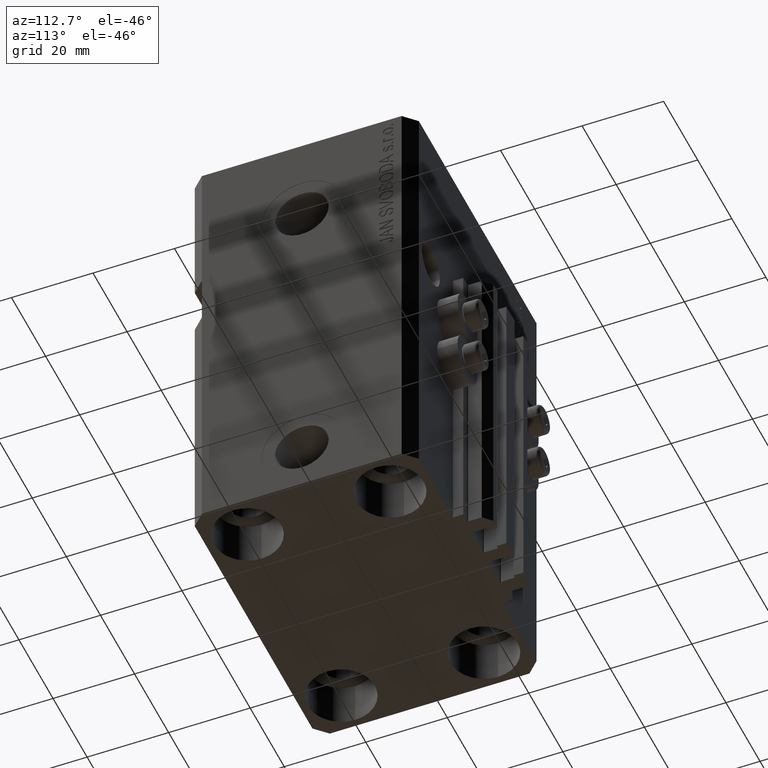
[diagram: clean part render]
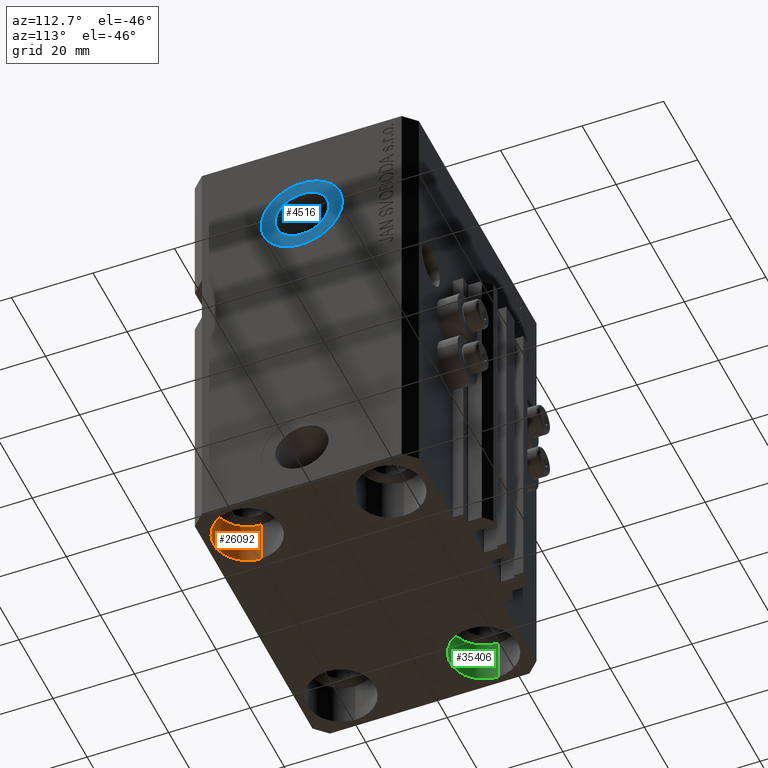
[diagram: same view with three faces highlighted in distinct colors, each labeled with its STEP entity id]
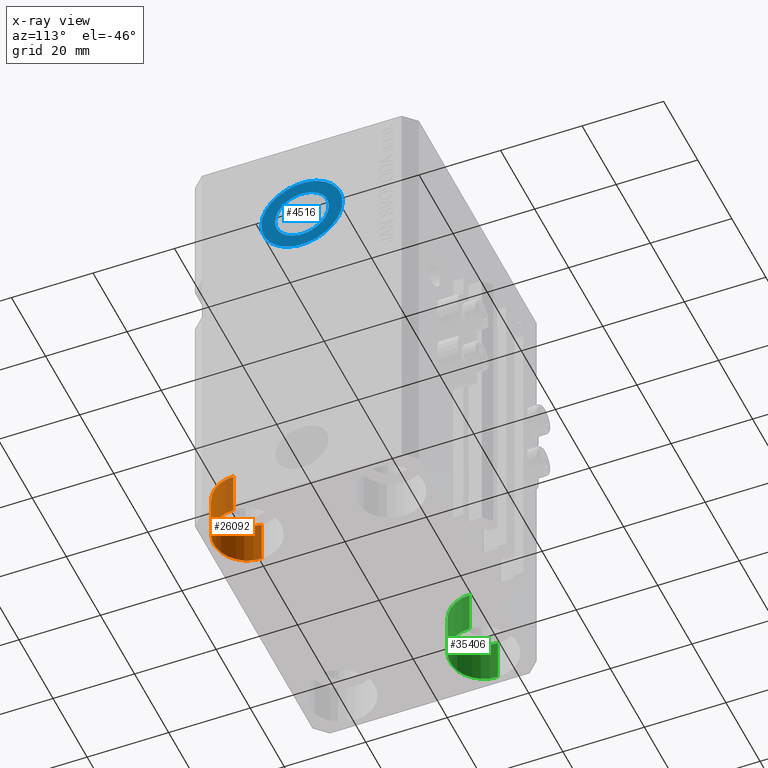
[diagram: x-ray of the same camera — body ghosted, the three highlighted faces saturated]
A machine part, auxiliary view with three faces highlighted in distinct colors.
The next image is the same camera in x-ray (body ghosted, the three faces saturated) — at least one of them is partly hidden behind the body in this view.
Their STEP definitions:

[orange] entity #26092 — the highlighted cylindrical surface (edge-blend (fillet) strip) has radius 8.25 mm, axis along (-0, -0, -1).
#1530 = EDGE_CURVE ( 'NONE', #41161, #18474, #46039, .T. ) ;
#4219 = CARTESIAN_POINT ( 'NONE',  ( 27.50000000000000355, -17.50000000000000000, -110.0000000000000000 ) ) ;
#4672 = DIRECTION ( 'NONE',  ( 1.000000000000000000, 0.000000000000000000, 0.000000000000000000 ) ) ;
#5821 = DIRECTION ( 'NONE',  ( -0.000000000000000000, -0.000000000000000000, -1.000000000000000000 ) ) ;
#11143 = AXIS2_PLACEMENT_3D ( 'NONE', #44442, #15793, #4672 ) ;
#13281 = DIRECTION ( 'NONE',  ( -1.000000000000000000, 0.000000000000000000, 0.000000000000000000 ) ) ;
#13619 = CARTESIAN_POINT ( 'NONE',  ( 19.25000000000000000, -17.50000000000000000, -99.00000000000000000 ) ) ;
#14401 = EDGE_CURVE ( 'NONE', #43919, #26693, #46798, .T. ) ;
#15793 = DIRECTION ( 'NONE',  ( -0.000000000000000000, -0.000000000000000000, 1.000000000000000000 ) ) ;
#17056 = CYLINDRICAL_SURFACE ( 'NONE', #39009, 8.250000000000003553 ) ;
#18474 = VERTEX_POINT ( 'NONE', #42872 ) ;
#18659 = DIRECTION ( 'NONE',  ( 1.000000000000000000, 0.000000000000000000, 0.000000000000000000 ) ) ;
#19797 = EDGE_CURVE ( 'NONE', #18474, #26693, #43330, .T. ) ;
#20374 = ORIENTED_EDGE ( 'NONE', *, *, #44709, .T. ) ;
#22430 = DIRECTION ( 'NONE',  ( -0.000000000000000000, -0.000000000000000000, 1.000000000000000000 ) ) ;
#22876 = CARTESIAN_POINT ( 'NONE',  ( 35.75000000000000711, -17.50000000000000000, -99.00000000000000000 ) ) ;
#23017 = ORIENTED_EDGE ( 'NONE', *, *, #19797, .F. ) ;
#23917 = DIRECTION ( 'NONE',  ( -0.000000000000000000, -0.000000000000000000, -1.000000000000000000 ) ) ;
#24263 = VECTOR ( 'NONE', #24316, 1000.000000000000000 ) ;
#24316 = DIRECTION ( 'NONE',  ( -0.000000000000000000, -0.000000000000000000, -1.000000000000000000 ) ) ;
#24703 = ORIENTED_EDGE ( 'NONE', *, *, #1530, .F. ) ;
#26092 = ADVANCED_FACE ( 'NONE', ( #34817 ), #17056, .F. ) ;
#26598 = CARTESIAN_POINT ( 'NONE',  ( 19.25000000000000000, -17.50000000000000000, -99.00000000000000000 ) ) ;
#26693 = VERTEX_POINT ( 'NONE', #40765 ) ;
#31932 = ORIENTED_EDGE ( 'NONE', *, *, #14401, .T. ) ;
#32757 = AXIS2_PLACEMENT_3D ( 'NONE', #4219, #22430, #18659 ) ;
#33819 = VECTOR ( 'NONE', #5821, 1000.000000000000000 ) ;
#34817 = FACE_OUTER_BOUND ( 'NONE', #35814, .T. ) ;
#35814 = EDGE_LOOP ( 'NONE', ( #20374, #31932, #23017, #24703 ) ) ;
#38355 = CIRCLE ( 'NONE', #11143, 8.250000000000000000 ) ;
#39009 = AXIS2_PLACEMENT_3D ( 'NONE', #42606, #23917, #13281 ) ;
#39711 = CARTESIAN_POINT ( 'NONE',  ( 35.75000000000000711, -17.50000000000000000, -99.00000000000000000 ) ) ;
#40765 = CARTESIAN_POINT ( 'NONE',  ( 35.75000000000000711, -17.50000000000000000, -110.0000000000000000 ) ) ;
#41161 = VERTEX_POINT ( 'NONE', #26598 ) ;
#42606 = CARTESIAN_POINT ( 'NONE',  ( 27.50000000000000355, -17.50000000000000000, -99.00000000000000000 ) ) ;
#42872 = CARTESIAN_POINT ( 'NONE',  ( 19.25000000000000000, -17.50000000000000000, -110.0000000000000000 ) ) ;
#43330 = CIRCLE ( 'NONE', #32757, 8.250000000000000000 ) ;
#43919 = VERTEX_POINT ( 'NONE', #22876 ) ;
#44442 = CARTESIAN_POINT ( 'NONE',  ( 27.50000000000000355, -17.50000000000000000, -99.00000000000000000 ) ) ;
#44709 = EDGE_CURVE ( 'NONE', #41161, #43919, #38355, .T. ) ;
#46039 = LINE ( 'NONE', #13619, #33819 ) ;
#46798 = LINE ( 'NONE', #39711, #24263 ) ;

[blue] entity #4516 — the highlighted planar face has unit normal (1, -0, 0).
#3389 = DIRECTION ( 'NONE',  ( 1.334402673828349134E-14, 1.000000000000000000, 0.000000000000000000 ) ) ;
#4516 = ADVANCED_FACE ( 'NONE', ( #37768, #5334 ), #34207, .T. ) ;
#4615 = DIRECTION ( 'NONE',  ( 1.370906090437597808E-14, 1.000000000000000000, 0.000000000000000000 ) ) ;
#5334 = FACE_OUTER_BOUND ( 'NONE', #24779, .T. ) ;
#6465 = DIRECTION ( 'NONE',  ( 1.370906090437597808E-14, 1.000000000000000000, 0.000000000000000000 ) ) ;
#10881 = CIRCLE ( 'NONE', #37338, 10.00000000000000000 ) ;
#11229 = VERTEX_POINT ( 'NONE', #17084 ) ;
#12319 = ORIENTED_EDGE ( 'NONE', *, *, #34670, .T. ) ;
#12396 = CARTESIAN_POINT ( 'NONE',  ( 37.40000000000025437, -4.022543243901667481E-13, -22.00000000000000000 ) ) ;
#13824 = CARTESIAN_POINT ( 'NONE',  ( 37.40000000000025437, -4.022543243901667481E-13, -22.00000000000000000 ) ) ;
#15846 = ORIENTED_EDGE ( 'NONE', *, *, #33627, .T. ) ;
#16972 = DIRECTION ( 'NONE',  ( 1.318389841742373392E-14, 1.000000000000000000, 0.000000000000000000 ) ) ;
#17007 = AXIS2_PLACEMENT_3D ( 'NONE', #25369, #17569, #6465 ) ;
#17084 = CARTESIAN_POINT ( 'NONE',  ( 37.40000000000033964, 6.579999999999503579, -22.00000000000000000 ) ) ;
#17569 = DIRECTION ( 'NONE',  ( 1.000000000000000000, -1.334402673828349134E-14, 0.000000000000000000 ) ) ;
#19529 = CARTESIAN_POINT ( 'NONE',  ( 37.40000000000025437, -4.990666000118059729E-13, -22.00000000000000000 ) ) ;
#19953 = VERTEX_POINT ( 'NONE', #42088 ) ;
#21148 = DIRECTION ( 'NONE',  ( 1.000000000000000000, -1.334402673828349134E-14, 0.000000000000000000 ) ) ;
#21474 = AXIS2_PLACEMENT_3D ( 'NONE', #12396, #37724, #41033 ) ;
#22614 = EDGE_CURVE ( 'NONE', #11229, #19953, #38914, .T. ) ;
#24748 = CARTESIAN_POINT ( 'NONE',  ( 37.40000000000025437, -4.022543243901667481E-13, -22.00000000000000000 ) ) ;
#24779 = EDGE_LOOP ( 'NONE', ( #15846, #12319 ) ) ;
#25069 = ORIENTED_EDGE ( 'NONE', *, *, #45083, .F. ) ;
#25369 = CARTESIAN_POINT ( 'NONE',  ( 37.40000000000025437, -4.990666000118059729E-13, -22.00000000000000000 ) ) ;
#27184 = CARTESIAN_POINT ( 'NONE',  ( 37.40000000000038227, 9.999999999999598543, -22.00000000000000000 ) ) ;
#30009 = CARTESIAN_POINT ( 'NONE',  ( 37.40000000000011937, -10.00000000000040323, -22.00000000000000000 ) ) ;
#30889 = AXIS2_PLACEMENT_3D ( 'NONE', #13824, #21148, #3389 ) ;
#31453 = EDGE_LOOP ( 'NONE', ( #46203, #25069 ) ) ;
#32320 = AXIS2_PLACEMENT_3D ( 'NONE', #19529, #33976, #4615 ) ;
#33627 = EDGE_CURVE ( 'NONE', #43701, #46603, #10881, .T. ) ;
#33976 = DIRECTION ( 'NONE',  ( 1.000000000000000000, -1.334402673828349134E-14, 0.000000000000000000 ) ) ;
#34207 = PLANE ( 'NONE',  #30889 ) ;
#34597 = CIRCLE ( 'NONE', #32320, 6.580000000000002736 ) ;
#34670 = EDGE_CURVE ( 'NONE', #46603, #43701, #35112, .T. ) ;
#35112 = CIRCLE ( 'NONE', #21474, 10.00000000000000000 ) ;
#37338 = AXIS2_PLACEMENT_3D ( 'NONE', #24748, #39217, #16972 ) ;
#37724 = DIRECTION ( 'NONE',  ( 1.000000000000000000, -1.334402673828349134E-14, 0.000000000000000000 ) ) ;
#37768 = FACE_BOUND ( 'NONE', #31453, .T. ) ;
#38914 = CIRCLE ( 'NONE', #17007, 6.580000000000002736 ) ;
#39217 = DIRECTION ( 'NONE',  ( 1.000000000000000000, -1.334402673828349134E-14, 0.000000000000000000 ) ) ;
#41033 = DIRECTION ( 'NONE',  ( 1.318389841742373392E-14, 1.000000000000000000, 0.000000000000000000 ) ) ;
#42088 = CARTESIAN_POINT ( 'NONE',  ( 37.40000000000016200, -6.580000000000500116, -22.00000000000000000 ) ) ;
#43701 = VERTEX_POINT ( 'NONE', #27184 ) ;
#45083 = EDGE_CURVE ( 'NONE', #19953, #11229, #34597, .T. ) ;
#46203 = ORIENTED_EDGE ( 'NONE', *, *, #22614, .F. ) ;
#46603 = VERTEX_POINT ( 'NONE', #30009 ) ;

[green] entity #35406 — the highlighted cylindrical surface (edge-blend (fillet) strip) has radius 8.25 mm, axis along (-0, -0, -1).
#59 = ORIENTED_EDGE ( 'NONE', *, *, #20647, .T. ) ;
#664 = ORIENTED_EDGE ( 'NONE', *, *, #28227, .F. ) ;
#1298 = VERTEX_POINT ( 'NONE', #40155 ) ;
#2166 = DIRECTION ( 'NONE',  ( -0.000000000000000000, -0.000000000000000000, 1.000000000000000000 ) ) ;
#2199 = DIRECTION ( 'NONE',  ( -0.000000000000000000, -0.000000000000000000, 1.000000000000000000 ) ) ;
#3065 = CARTESIAN_POINT ( 'NONE',  ( -19.25000000000000355, 17.50000000000000000, -99.00000000000000000 ) ) ;
#3310 = AXIS2_PLACEMENT_3D ( 'NONE', #23970, #2199, #35107 ) ;
#4085 = EDGE_CURVE ( 'NONE', #23189, #9152, #35511, .T. ) ;
#6221 = AXIS2_PLACEMENT_3D ( 'NONE', #20398, #2166, #17074 ) ;
#6417 = AXIS2_PLACEMENT_3D ( 'NONE', #37267, #12649, #45077 ) ;
#8178 = CARTESIAN_POINT ( 'NONE',  ( -35.75000000000000711, 17.50000000000000000, -99.00000000000000000 ) ) ;
#9152 = VERTEX_POINT ( 'NONE', #24395 ) ;
#10654 = DIRECTION ( 'NONE',  ( -0.000000000000000000, -0.000000000000000000, -1.000000000000000000 ) ) ;
#11256 = LINE ( 'NONE', #8178, #15538 ) ;
#12649 = DIRECTION ( 'NONE',  ( -0.000000000000000000, -0.000000000000000000, -1.000000000000000000 ) ) ;
#15538 = VECTOR ( 'NONE', #19286, 1000.000000000000000 ) ;
#16753 = VERTEX_POINT ( 'NONE', #23234 ) ;
#17023 = ORIENTED_EDGE ( 'NONE', *, *, #29453, .F. ) ;
#17074 = DIRECTION ( 'NONE',  ( 1.000000000000000000, 0.000000000000000000, 0.000000000000000000 ) ) ;
#19286 = DIRECTION ( 'NONE',  ( -0.000000000000000000, -0.000000000000000000, -1.000000000000000000 ) ) ;
#20398 = CARTESIAN_POINT ( 'NONE',  ( -27.50000000000000355, 17.50000000000000000, -110.0000000000000000 ) ) ;
#20647 = EDGE_CURVE ( 'NONE', #1298, #23189, #28990, .T. ) ;
#23189 = VERTEX_POINT ( 'NONE', #43020 ) ;
#23234 = CARTESIAN_POINT ( 'NONE',  ( -35.75000000000000711, 17.50000000000000000, -110.0000000000000000 ) ) ;
#23970 = CARTESIAN_POINT ( 'NONE',  ( -27.50000000000000355, 17.50000000000000000, -99.00000000000000000 ) ) ;
#24395 = CARTESIAN_POINT ( 'NONE',  ( -19.25000000000000355, 17.50000000000000000, -110.0000000000000000 ) ) ;
#28227 = EDGE_CURVE ( 'NONE', #1298, #16753, #11256, .T. ) ;
#28990 = CIRCLE ( 'NONE', #3310, 8.250000000000000000 ) ;
#29453 = EDGE_CURVE ( 'NONE', #16753, #9152, #31264, .T. ) ;
#29914 = FACE_OUTER_BOUND ( 'NONE', #44332, .T. ) ;
#31264 = CIRCLE ( 'NONE', #6221, 8.250000000000000000 ) ;
#33920 = VECTOR ( 'NONE', #10654, 1000.000000000000000 ) ;
#34419 = CYLINDRICAL_SURFACE ( 'NONE', #6417, 8.250000000000000000 ) ;
#35107 = DIRECTION ( 'NONE',  ( 1.000000000000000000, 0.000000000000000000, 0.000000000000000000 ) ) ;
#35406 = ADVANCED_FACE ( 'NONE', ( #29914 ), #34419, .F. ) ;
#35511 = LINE ( 'NONE', #3065, #33920 ) ;
#37267 = CARTESIAN_POINT ( 'NONE',  ( -27.50000000000000355, 17.50000000000000000, -99.00000000000000000 ) ) ;
#40155 = CARTESIAN_POINT ( 'NONE',  ( -35.75000000000000711, 17.50000000000000000, -99.00000000000000000 ) ) ;
#43020 = CARTESIAN_POINT ( 'NONE',  ( -19.25000000000000355, 17.50000000000000000, -99.00000000000000000 ) ) ;
#44332 = EDGE_LOOP ( 'NONE', ( #59, #44512, #17023, #664 ) ) ;
#44512 = ORIENTED_EDGE ( 'NONE', *, *, #4085, .T. ) ;
#45077 = DIRECTION ( 'NONE',  ( -1.000000000000000000, 0.000000000000000000, 0.000000000000000000 ) ) ;